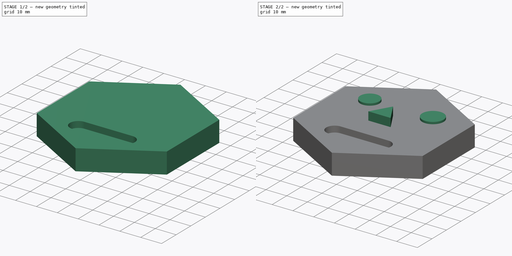
[diagram: build sequence overview — one tinted view per stage of 2, left to right]
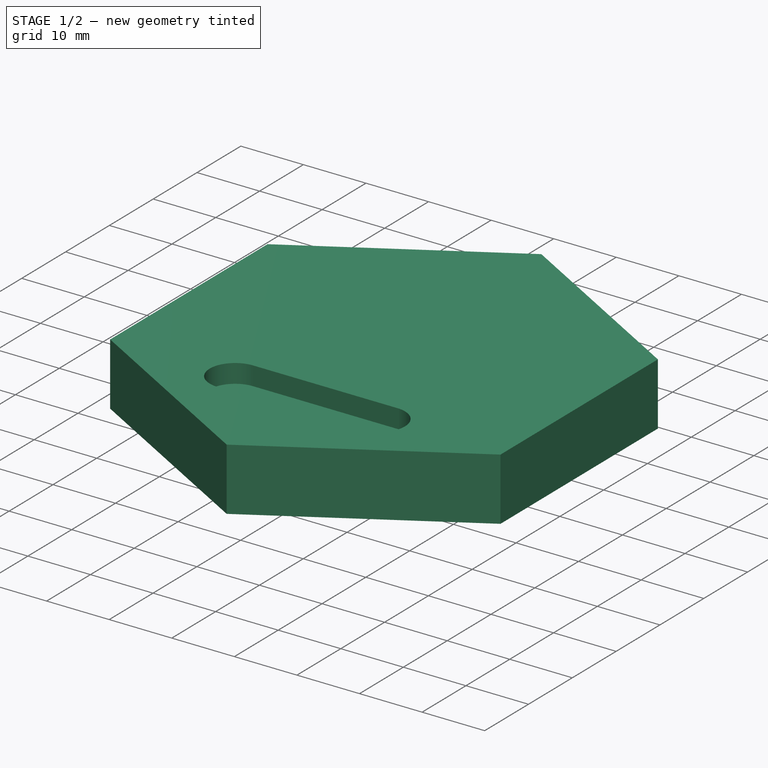
[diagram: stage 1 of 2 — iso view after this stage's code; geometry added in this stage tinted green]
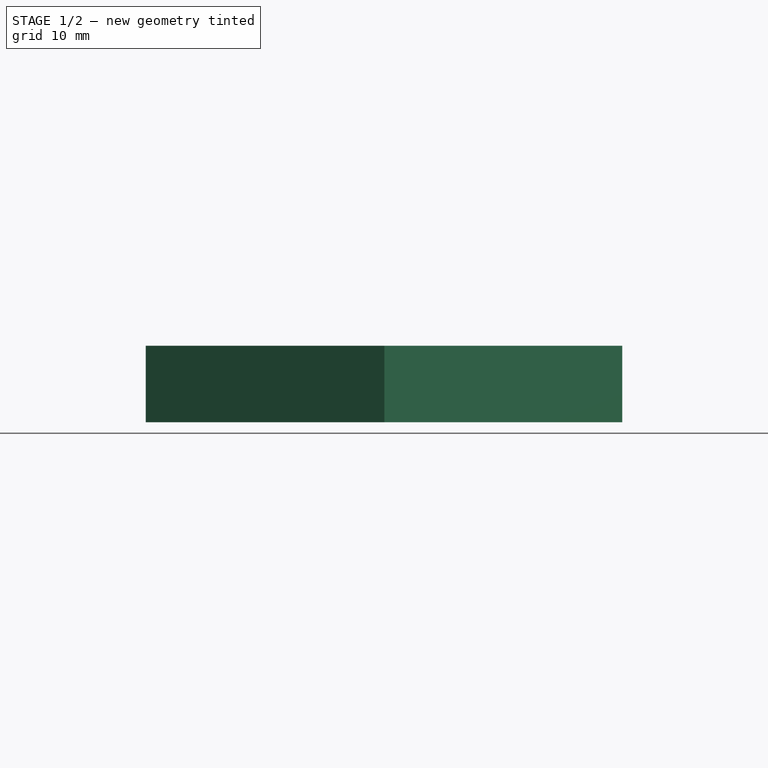
[diagram: stage 1 of 2 — front view after this stage's code; geometry added in this stage tinted green]
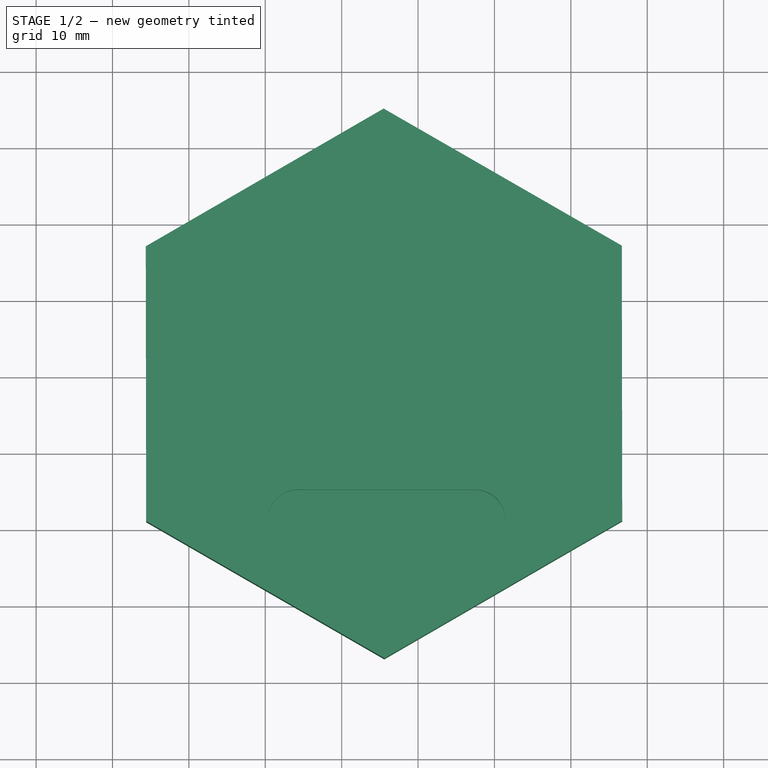
[diagram: stage 1 of 2 — top view after this stage's code; geometry added in this stage tinted green]
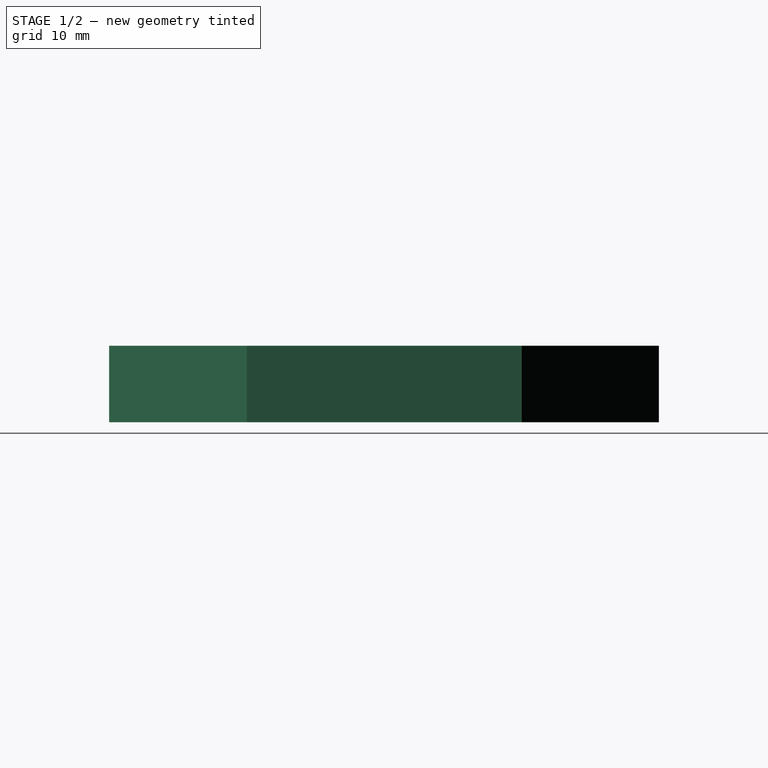
[diagram: stage 1 of 2 — right view after this stage's code; geometry added in this stage tinted green]
FCSTD DOCUMENT  (FreeCAD 1.0R38642 (Git))
Label: Opgave_1.1.5
License: All rights reserved
LicenseURL: http://en.wikipedia.org/wiki/All_rights_reserved
objects: PartDesign::Pad×3, Sketcher::SketchObject×1, PartDesign::Pocket×1, PartDesign::Body×1
note: 15 computed .brp shape members not serialized (recipe doc carries the construction recipe); baked Part::Feature solids carry a one-line shape summary decoded from their .brp

FEATURE [Sketcher::SketchObject] Sketch
  ArcFitTolerance = 1e-06
  AttachmentSupport = -> [XY_Plane]
  FullyConstrained = false
  MakeInternals = false
  MapMode = 5
  sketch-geometry (17):
    g0: LineSegment StartX=96.7236 StartY=31.1383 StartZ=0 EndX=96.6741 EndY=67.1161 EndZ=0
    g1: LineSegment StartX=96.6741 StartY=67.1161 StartZ=0 EndX=65.4917 EndY=85.0621 EndZ=0
    g2: LineSegment StartX=65.4917 StartY=85.0621 StartZ=0 EndX=34.3588 EndY=67.0304 EndZ=0
    g3: LineSegment StartX=34.3588 StartY=67.0304 StartZ=0 EndX=34.4083 EndY=31.0527 EndZ=0
    g4: LineSegment StartX=34.4083 StartY=31.0527 StartZ=0 EndX=65.5907 EndY=13.1066 EndZ=0
    g5: LineSegment StartX=65.5907 StartY=13.1066 StartZ=0 EndX=96.7236 EndY=31.1383 EndZ=0
    g6: Circle [constr] CenterX=65.5412 CenterY=49.0844 CenterZ=0 NormalX=0 NormalY=0 NormalZ=1 AngleXU=0 Radius=35.9778
    g7: Circle CenterX=50.0453 CenterY=61.4527 CenterZ=0 NormalX=0 NormalY=0 NormalZ=1 AngleXU=0 Radius=4.61885
    g8: Circle CenterX=80.0827 CenterY=61.986 CenterZ=0 NormalX=0 NormalY=0 NormalZ=1 AngleXU=0 Radius=5.15796
    g9: ArcOfCircle CenterX=54.3254 CenterY=31.1269 CenterZ=0 NormalX=0 NormalY=0 NormalZ=1 AngleXU=0 Radius=4.05549 StartAngle=1.5708 EndAngle=4.71239
    g10: ArcOfCircle CenterX=77.4117 CenterY=31.1269 CenterZ=0 NormalX=0 NormalY=0 NormalZ=1 AngleXU=0 Radius=4.05549 StartAngle=4.71239 EndAngle=7.85398
    g11: LineSegment StartX=54.3254 StartY=35.1823 StartZ=0 EndX=77.4117 EndY=35.1823 EndZ=0
    g12: LineSegment StartX=54.3254 StartY=27.0714 StartZ=0 EndX=77.4117 EndY=27.0714 EndZ=0
    g13: LineSegment StartX=65.5538 StartY=55.2965 StartZ=0 EndX=60.155 EndY=45.9892 EndZ=0
    g14: LineSegment StartX=60.155 StartY=45.9892 StartZ=0 EndX=70.9148 EndY=45.9674 EndZ=0
    g15: LineSegment StartX=70.9148 StartY=45.9674 StartZ=0 EndX=65.5538 EndY=55.2965 EndZ=0
    g16: Circle [constr] CenterX=65.5412 CenterY=49.0844 CenterZ=0 NormalX=0 NormalY=0 NormalZ=1 AngleXU=0 Radius=6.21217
  constraints (28):
    c: Coincident(g0,g1)
    c: Coincident(g1,g2)
    c: Coincident(g2,g3)
    c: Coincident(g3,g4)
    c: Coincident(g4,g5)
    c: Coincident(g5,g0)
    c: Equal(g0, g1-g5) x5
    c: PointOnObject(g0,g6)
    c: PointOnObject(g1,g6)
    c: PointOnObject(g2,g6)
    c: PointOnObject(g3,g6)
    c: PointOnObject(g4,g6)
    c: PointOnObject(g5,g6)
    c: Tangent(g9,g11) = 1.5708
    c: Tangent(g9,g12) = -1.5708
    c: Tangent(g10,g11) = 1.5708
    c: Tangent(g10,g12) = -1.5708
    c: Equal(g9,g10)
    c: Horizontal(g12)
    c: Coincident(g13,g14)
    c: Coincident(g14,g15)
    c: Coincident(g15,g13)
    c: Equal(g13,g14)
    c: Equal(g13,g15)
    c: PointOnObject(g13,g16)
    c: PointOnObject(g14,g16)
    c: PointOnObject(g15,g16)
    c: Coincident(g6,g16)
FEATURE [PartDesign::Pad] Pad
  Direction = (0,0,1)
  Length = 10
  Length2 = 10
  Profile = -> Sketch [Edge4,Edge3,Edge2,Edge1,Edge6,Edge5]
  ReferenceAxis = -> Sketch [N_Axis]
  Refine = true
  Reversed = true
  Suppressed = false
  Type = 0
FEATURE [PartDesign::Pocket] Pocket
  BaseFeature = -> Pad
  Direction = (0,0,-1)
  Length = 3
  Length2 = 5
  Profile = -> Sketch [Edge10,Edge12,Edge9,Edge11]
  ReferenceAxis = -> Sketch [N_Axis]
  Refine = true
  Suppressed = false
  Type = 0
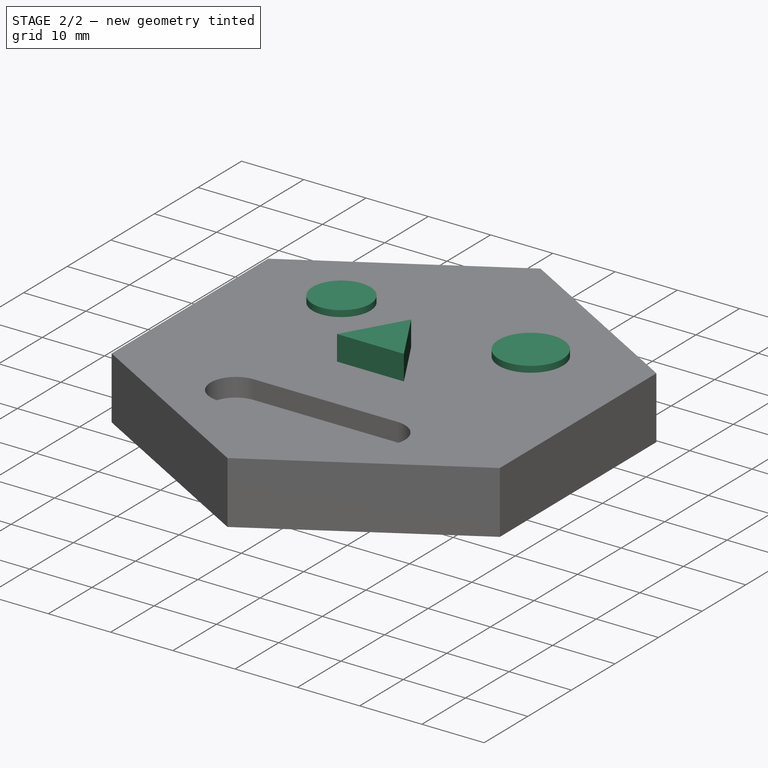
[diagram: stage 2 of 2 — iso view after this stage's code; geometry added in this stage tinted green]
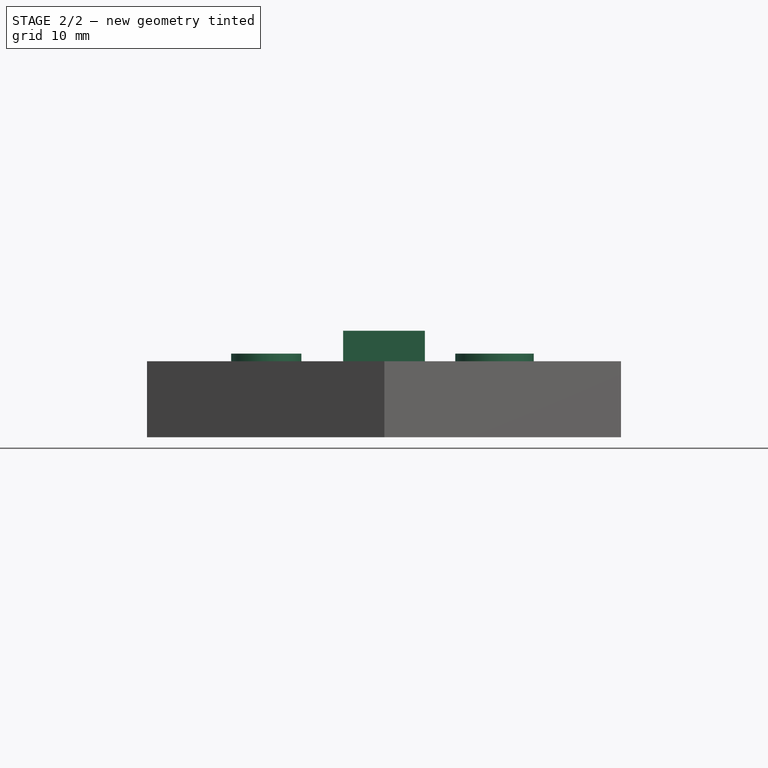
[diagram: stage 2 of 2 — front view after this stage's code; geometry added in this stage tinted green]
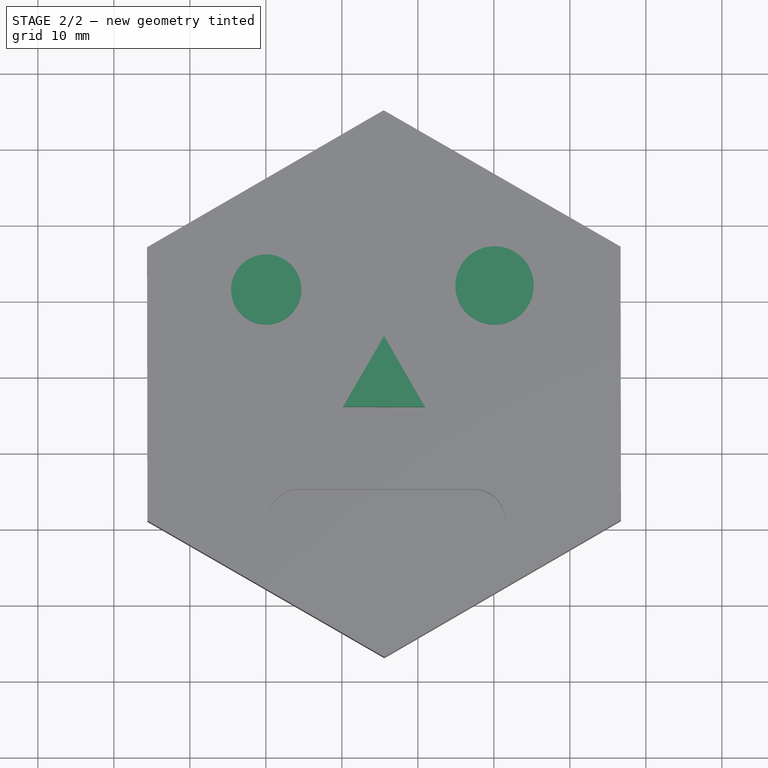
[diagram: stage 2 of 2 — top view after this stage's code; geometry added in this stage tinted green]
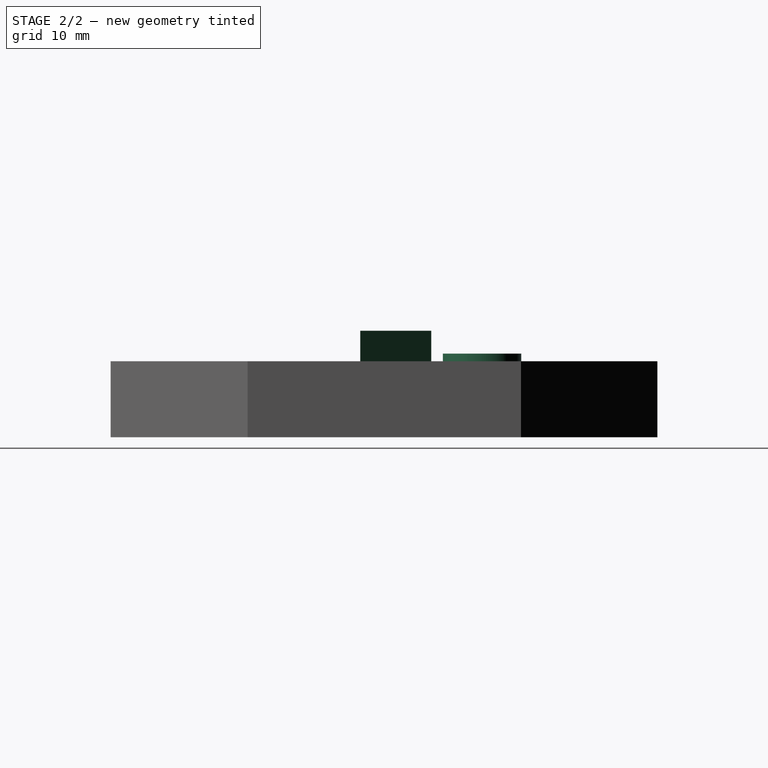
[diagram: stage 2 of 2 — right view after this stage's code; geometry added in this stage tinted green]
FEATURE [PartDesign::Pad] Pad001
  BaseFeature = -> Pocket
  Direction = (0,0,1)
  Length = 1
  Length2 = 10
  Profile = -> Sketch [Edge7,Edge8]
  ReferenceAxis = -> Sketch [N_Axis]
  Refine = true
  Suppressed = false
  Type = 0
FEATURE [PartDesign::Pad] Pad002
  BaseFeature = -> Pad001
  Direction = (0,0,1)
  Length = 4
  Length2 = 10
  Profile = -> Sketch [Edge14,Edge13,Edge15]
  ReferenceAxis = -> Sketch [N_Axis]
  Refine = true
  Suppressed = false
  Type = 0
FEATURE [PartDesign::Body] Body
  AllowCompound = true
  Group = -> [Sketch,Pad,Pocket,Pad001,Pad002]
  Origin = -> Origin
  Tip = -> Pad002
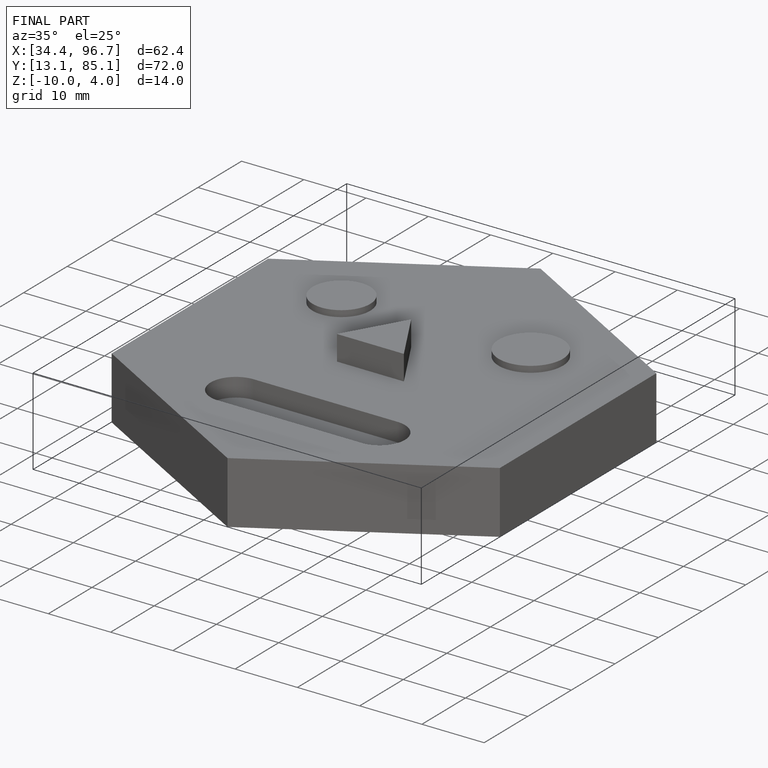
[diagram: finished part — iso view with bounding-box wireframe]
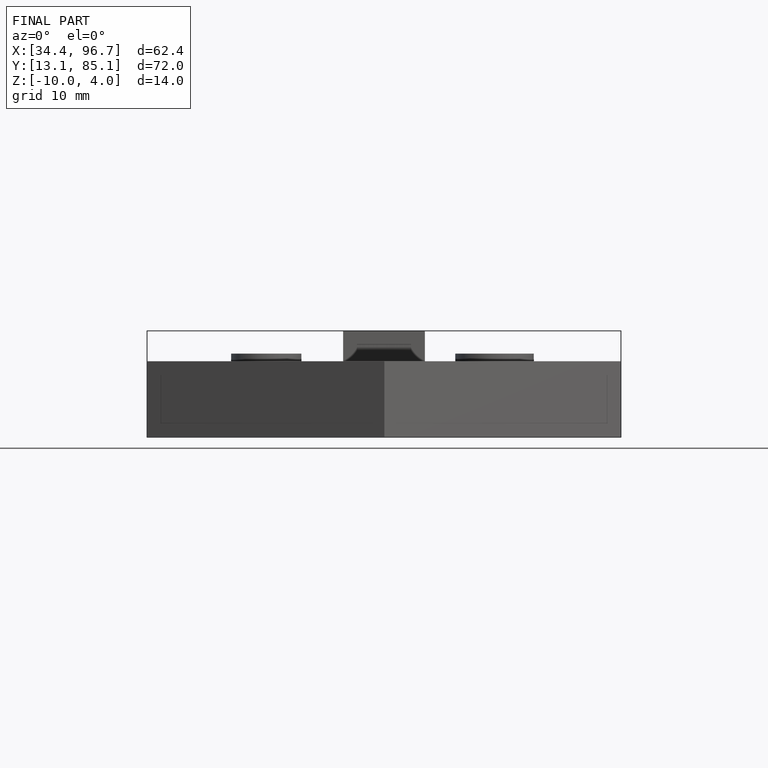
[diagram: finished part — front view with bounding-box wireframe]
